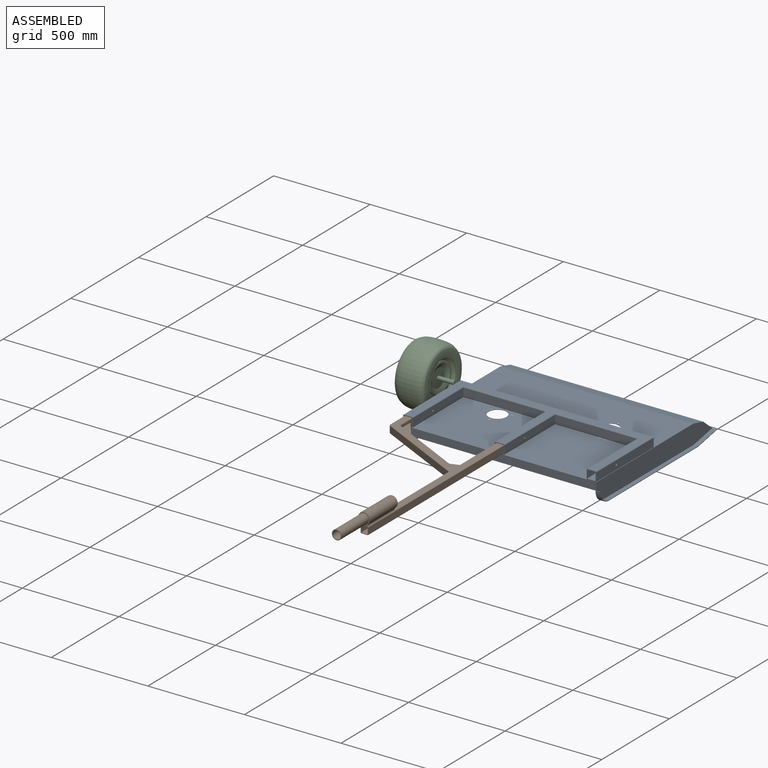
[diagram: assembled view]
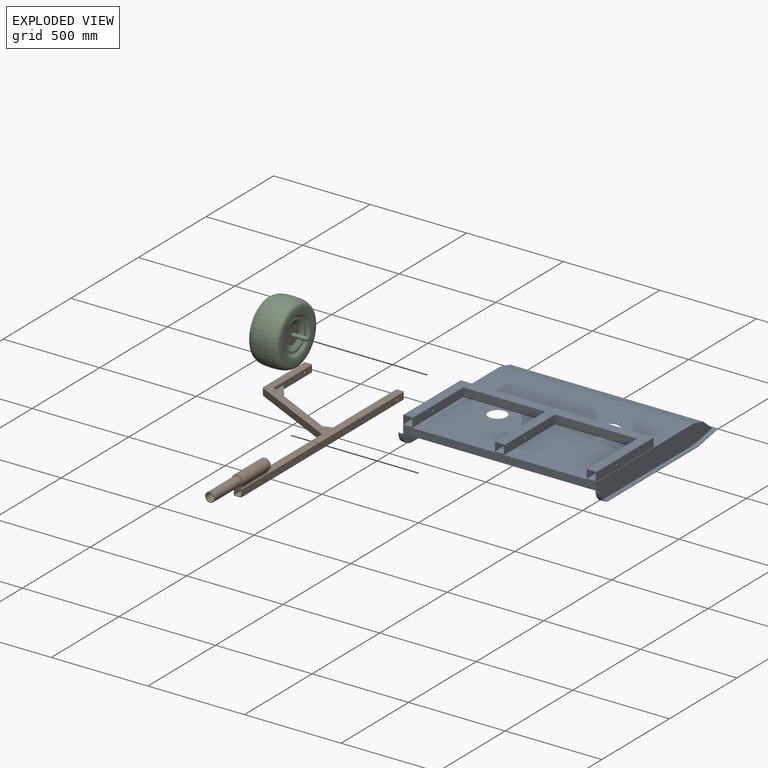
[diagram: exploded view]
GUIDED TOUR — MATED ASSEMBLY WITH SUBASSEMBLIES (Onshape document 05c2aa29a963e69aa2995861, AutoMate assembly 05c2aa29a963e69aa2995861_7a4f94b30cb1642494e6ea74_4649b74b9e4c2ec0a20121c2_default)

This assembly has 14 component occurrences arranged in 3 top-level units: 0 individual components plus 3 subassemblies (S0, S1, S2). The tour has two levels: first the top level, where each subassembly is treated as one rigid unit; then each subassembly is toured internally in its own section (nesting deeper than one subassembly level is flattened into its subassembly's section).

Components are labeled P0..P13 across the whole record; subassembly units are labeled S0..S2. A mate is a constraint between two units; its type names the relative motion it leaves free:
  FASTENED — locks the two components together rigidly (no relative motion),
  PARALLEL — keeps the two listed directions parallel,
  REVOLUTE — leaves rotation about the listed axis free (a hinge).
Axis/direction vectors are unit vectors and 'through' points are millimeter coordinates, both in the assembly's world frame.

TOP-LEVEL MATES (between units; each subassembly's internal mates are listed in its own section)
  1. FASTENED "Fastened 1": S0 <-> S1, direction (-1.000, 0.000, 0.000) through (593.43, 148.03, 202.15) mm

TOP-LEVEL ASSEMBLY ORDER
  1. S0 — the base component [order verified]
  2. S1 [order verified]
  3. S2 [order verified]
Order-tag legend:
  [order verified] — this step's position reverses a verified removal order: the component was checked to insert without passing through the ones already placed.

Of the 14 component occurrences, 5 carry the full construction recipe — the FeatureScript program that regenerates the part's solid from scratch; the rest are supplied as boundary geometry only. Each toured unit is shown spotlighted twice — assembled, then exploded with a leader line back to its socket (green = recipe-attached component, orange = geometry-only, blue = subassembly unit; the rest desaturated gray).
NOTE — document 2 of 2 of this assembly tour. The two overview renders and the header above are repeated from document 1; the component sections below continue where the previous document stopped.
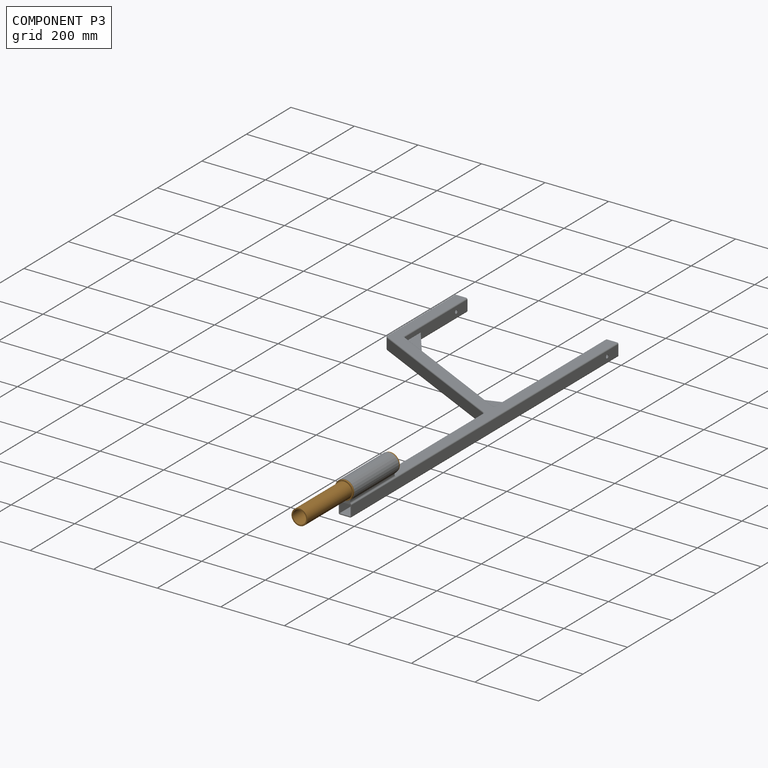
[diagram: component P3 — assembled]
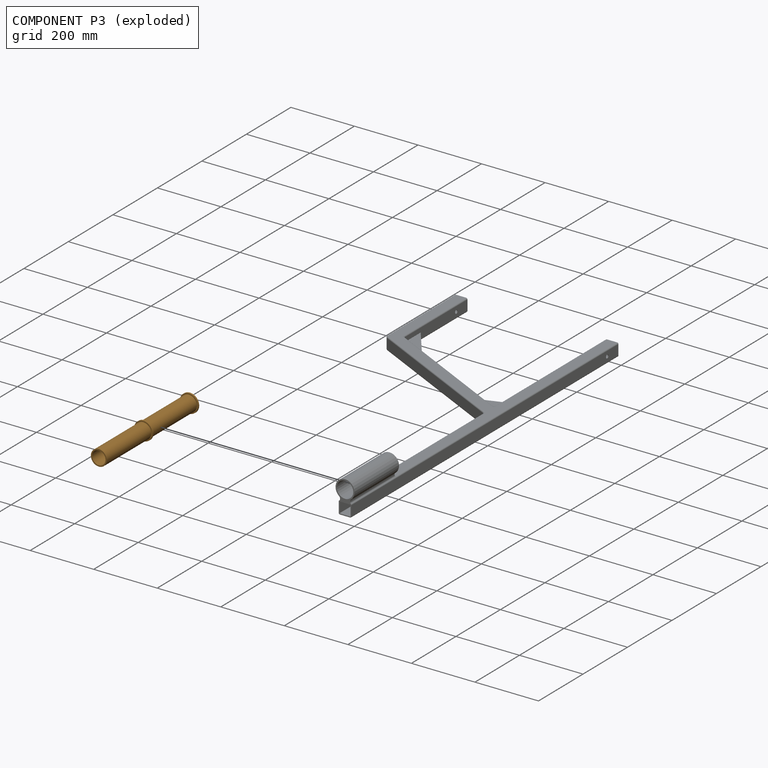
[diagram: component P3 — exploded]
COMPONENT P3 — geometry summary (no construction recipe available for this part):
  bounding box: 410.0 x 58.0 x 58.0 mm
  B-rep topology: 1 solid, 10 faces, 30 edges
  volume: 243788 mm^3 (18% of its bounding box)
  symmetry: revolution-symmetric about the y axis through its bounding-box center; mirror-symmetric across its x mid-plane, z mid-plane
Held by: REVOLUTE mate "Revolute 1" to P12; REVOLUTE mate "Revolute 1" to P12.
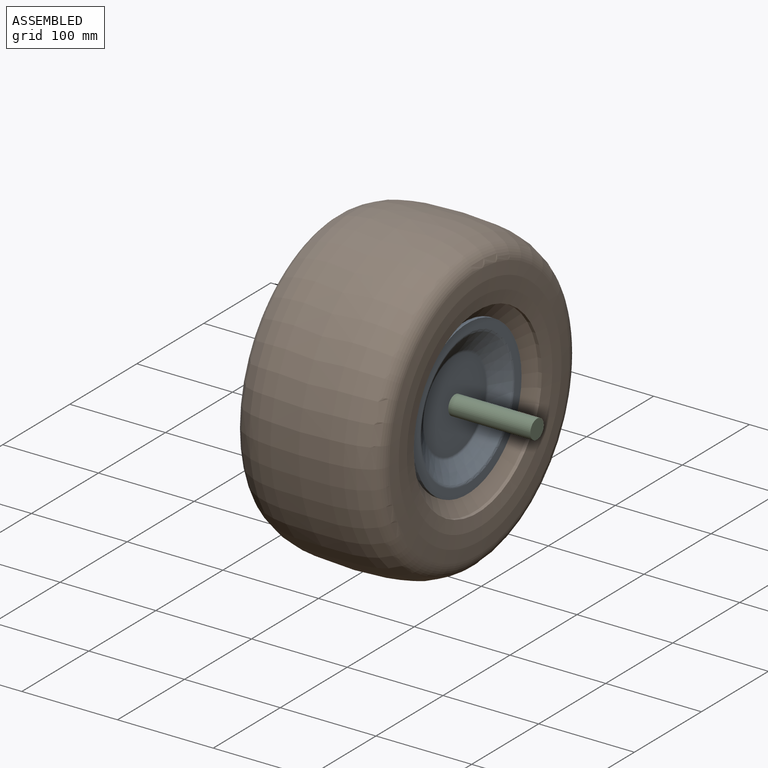
[diagram: subassembly S2 — assembled view]
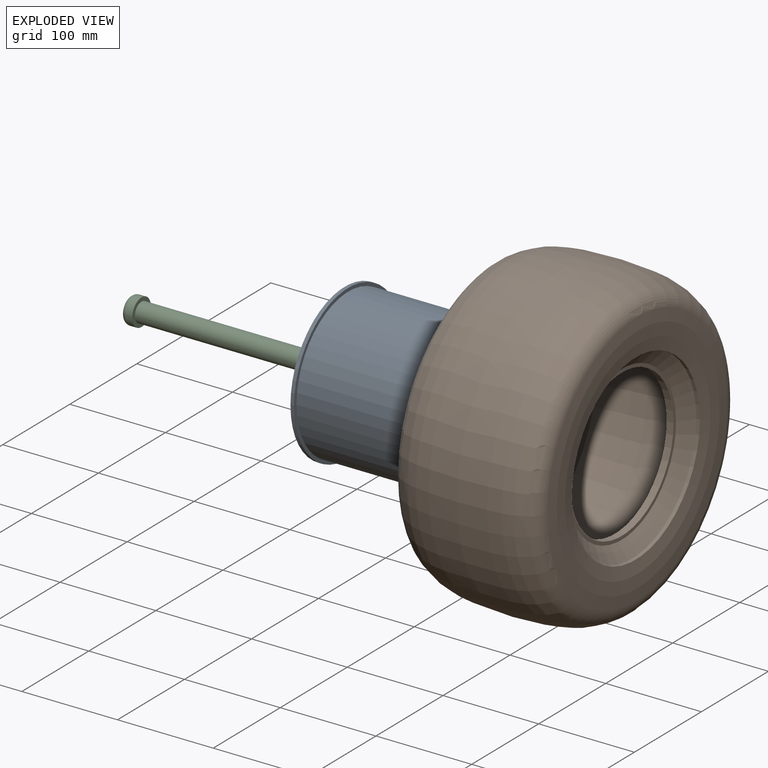
[diagram: subassembly S2 — exploded view]
SUBASSEMBLY S2 TOUR — 3 components, shown here in isolation at its own camera.

INTERNAL MATES
  1. REVOLUTE "Revolute 1": P6 <-> P11, axis (-1.000, 0.000, 0.000) through (-125.49, 393.89, 221.12) mm
  2. FASTENED "Fastened 2": P10 <-> P6, direction (-1.000, 0.000, 0.000) through (-134.79, 393.89, 221.12) mm
  3. REVOLUTE "Revolute 1": P6 <-> P11, axis (-1.000, 0.000, 0.000) through (-125.49, 393.89, 221.12) mm
  4. FASTENED "Fastened 2": P10 <-> P6, direction (-1.000, 0.000, 0.000) through (-134.79, 393.89, 221.12) mm

ASSEMBLY ORDER (within the subassembly)
  1. P6 — the base component [order heuristic]
  2. P10 [order heuristic]
  3. P11 [order heuristic]
Order-tag legend:
  [order heuristic] — this assembly is geometrically interlocked (no collision-free removal order exists), so components are listed in mate-graph order; insertion feasibility is not verified.
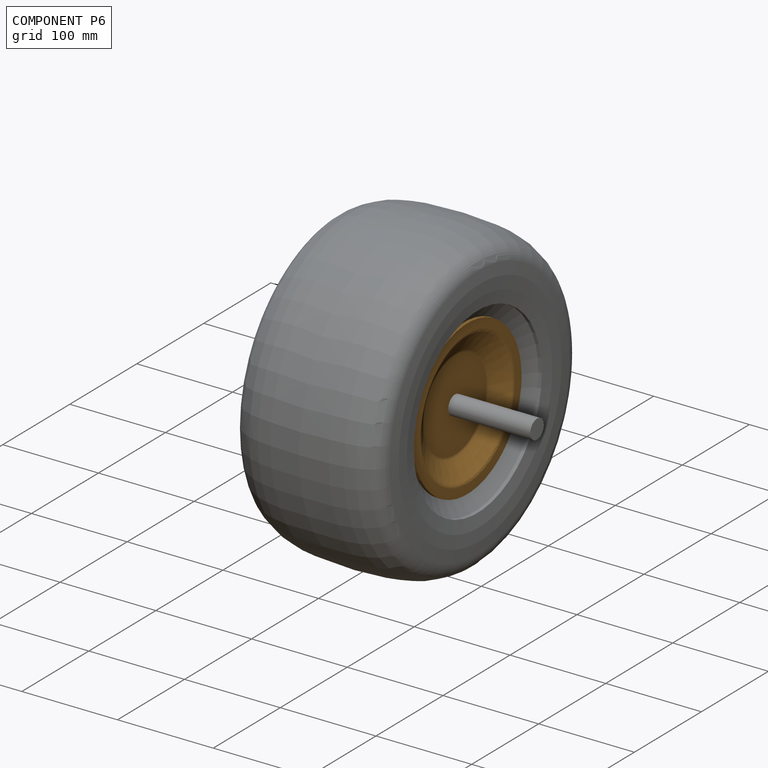
[diagram: component P6 — assembled]
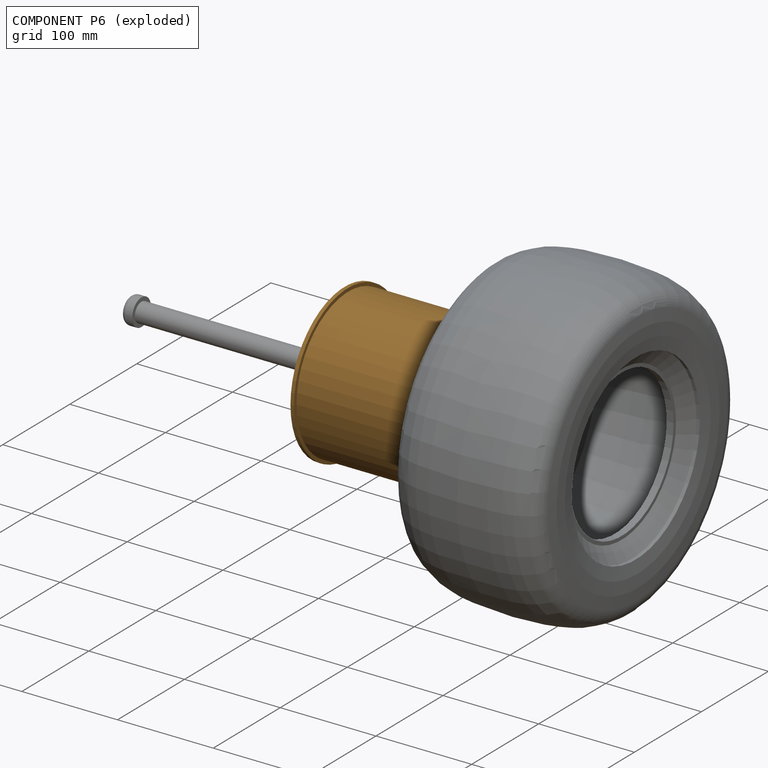
[diagram: component P6 — exploded]
COMPONENT P6 — geometry summary (no construction recipe available for this part):
  bounding box: 161.4 x 161.4 x 128.5 mm
  B-rep topology: 1 solid, 16 faces, 58 edges
  volume: 2097614 mm^3 (63% of its bounding box)
  symmetry: revolution-symmetric about the x axis through its bounding-box center; 2-fold rotationally symmetric about the y axis; 2-fold rotationally symmetric about the z axis; mirror-symmetric across its x mid-plane, y mid-plane, z mid-plane
Held by: REVOLUTE mate "Revolute 1" to P11; FASTENED mate "Fastened 2" to P10; REVOLUTE mate "Revolute 1" to P11; FASTENED mate "Fastened 2" to P10.
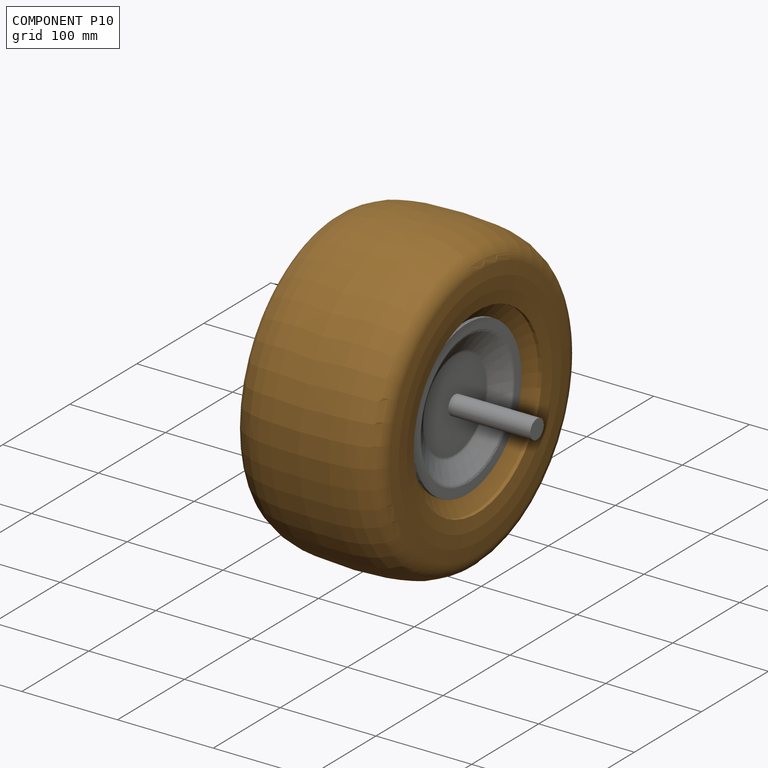
[diagram: component P10 — assembled]
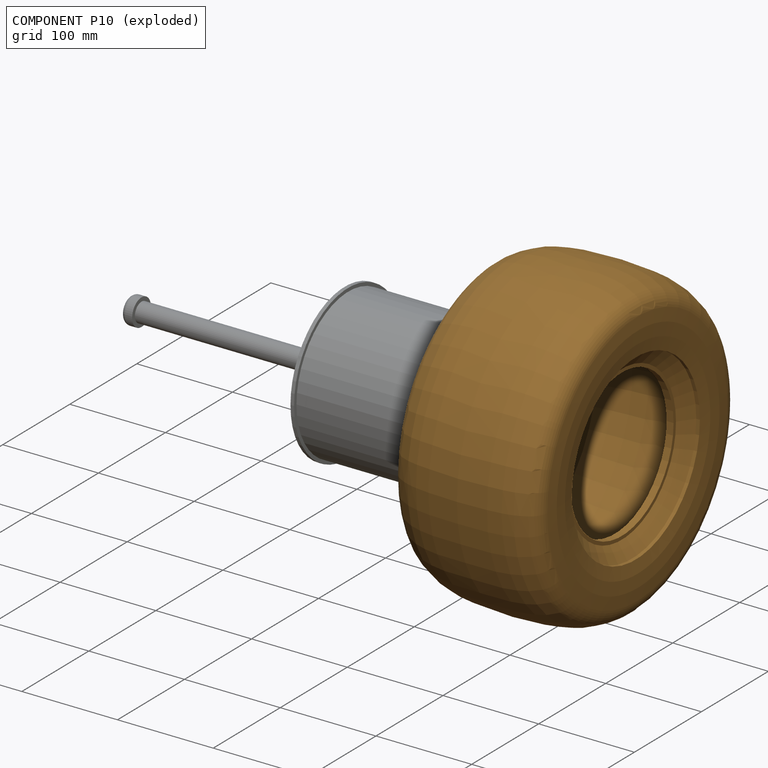
[diagram: component P10 — exploded]
COMPONENT P10 — geometry summary (no construction recipe available for this part):
  bounding box: 408.0 x 408.0 x 154.9 mm
  B-rep topology: 1 solid, 22 faces, 80 edges
  volume: 2394822 mm^3 (9% of its bounding box)
  symmetry: revolution-symmetric about the x axis through its bounding-box center; 2-fold rotationally symmetric about the y axis; 2-fold rotationally symmetric about the z axis; mirror-symmetric across its x mid-plane, y mid-plane, z mid-plane
Held by: FASTENED mate "Fastened 2" to P6; FASTENED mate "Fastened 2" to P6.
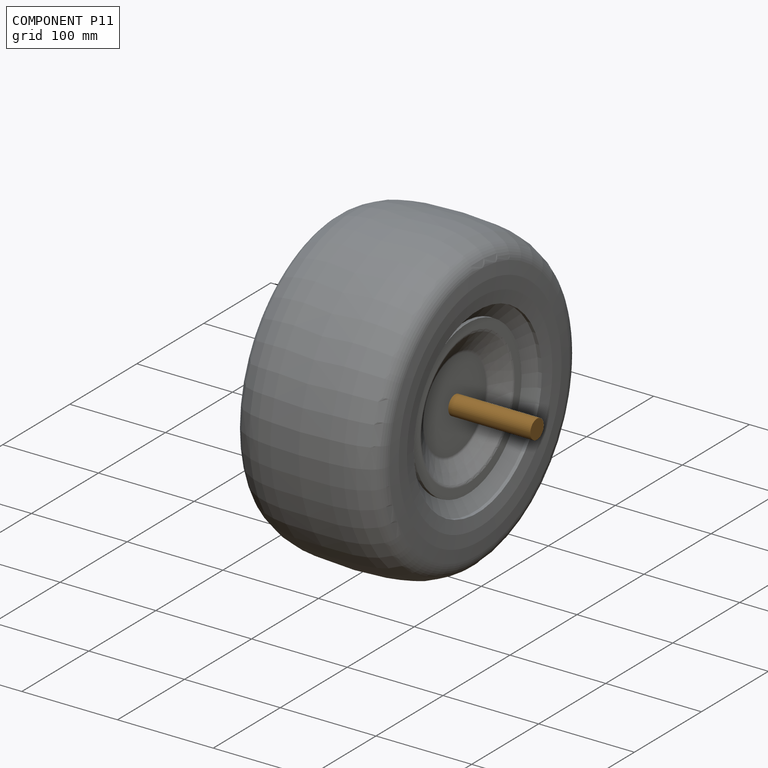
[diagram: component P11 — assembled]
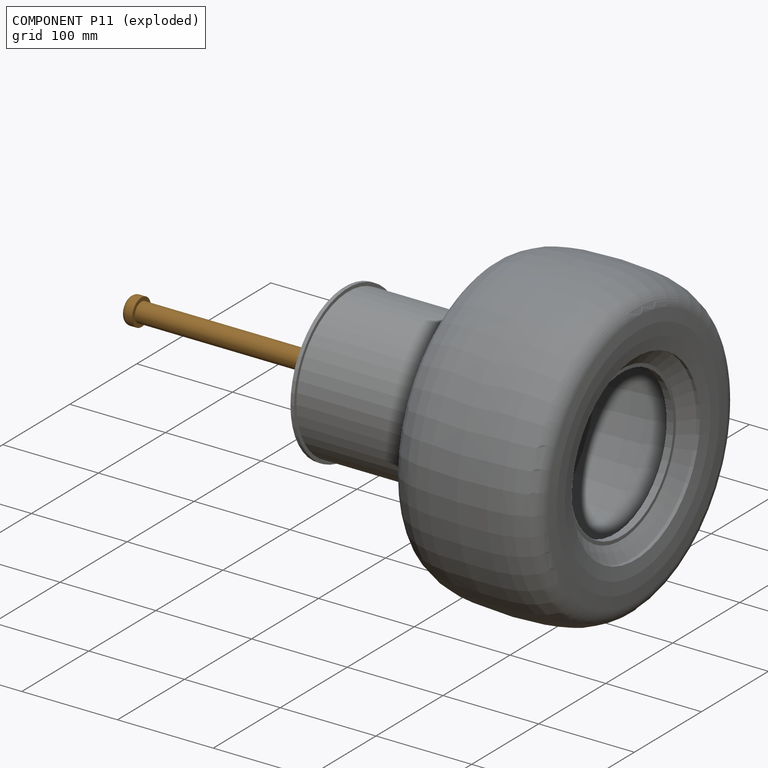
[diagram: component P11 — exploded]
COMPONENT P11 — geometry summary (no construction recipe available for this part):
  bounding box: 200.0 x 30.3 x 30.3 mm
  B-rep topology: 1 solid, 6 faces, 16 edges
  volume: 66017 mm^3 (36% of its bounding box)
  symmetry: revolution-symmetric about the y axis through its bounding-box center; mirror-symmetric across its x mid-plane, z mid-plane
Held by: REVOLUTE mate "Revolute 1" to P6; REVOLUTE mate "Revolute 1" to P6.
PROVENANCE & LICENSES
Assembly (occurrences, transforms, mates, per-part STEP geometry): AutoMate dataset, Zenodo record 7776208, CC0.
Construction recipes: CADFS (HuggingFace VladPyatov/CADFS, CC-BY-4.0, layered over the ABC dataset), FeatureScript reconstruction programs keyed by ABC model id.
Join: ABC meta listings map ABC model id -> Onshape documentId; within a shared document, parts are matched by geometric signature (bounding-box dims + volume at 0.1% relative tolerance, exact B-rep face/solid counts).
Verification: 5 of this assembly's 14 components carry a recipe attachment, and every attachment is mesh-verified: the CADFS STEP and the AutoMate member STEP were compared as meshes in their shared local frame (symmetric sampled-point-to-mesh distance); worst across the 5 attachments: below the mesh-comparison resolution (tessellation chordal tolerance ~1.51 mm) on a 1004 mm part.
Renders: orthographic iso camera (az 35 / el 25); the floor grid conveys scale (grid pitch printed in each image; no ruler). In the exploded view each component is displaced by its stored offset vector: the offsets alone carry the explosion direction (mate normal/axis signs are not orientation cues and do not encode it), and separation distances are assigned per mate-chain, not proportionally to assembly-order depth.
